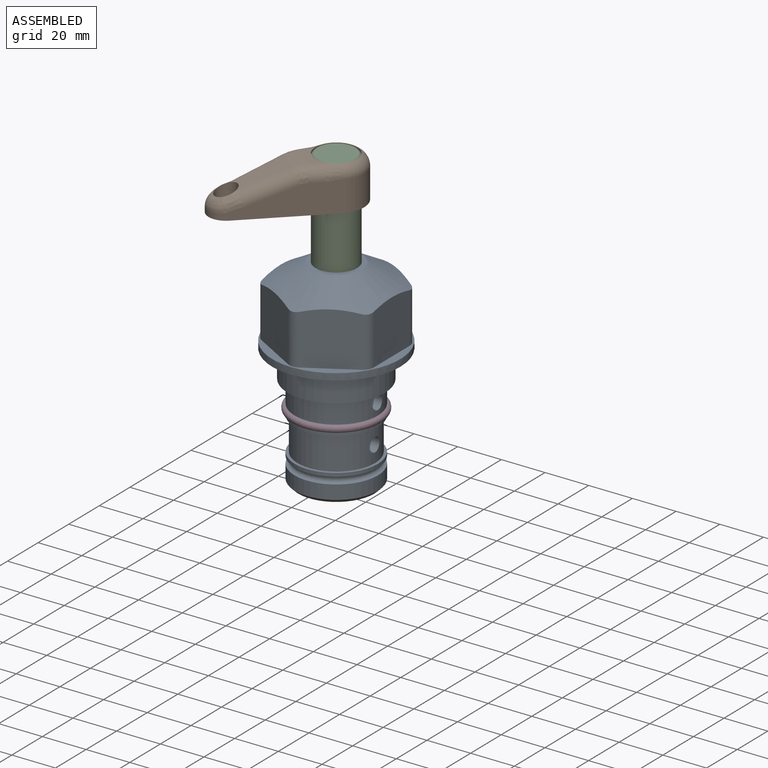
[diagram: assembled view]
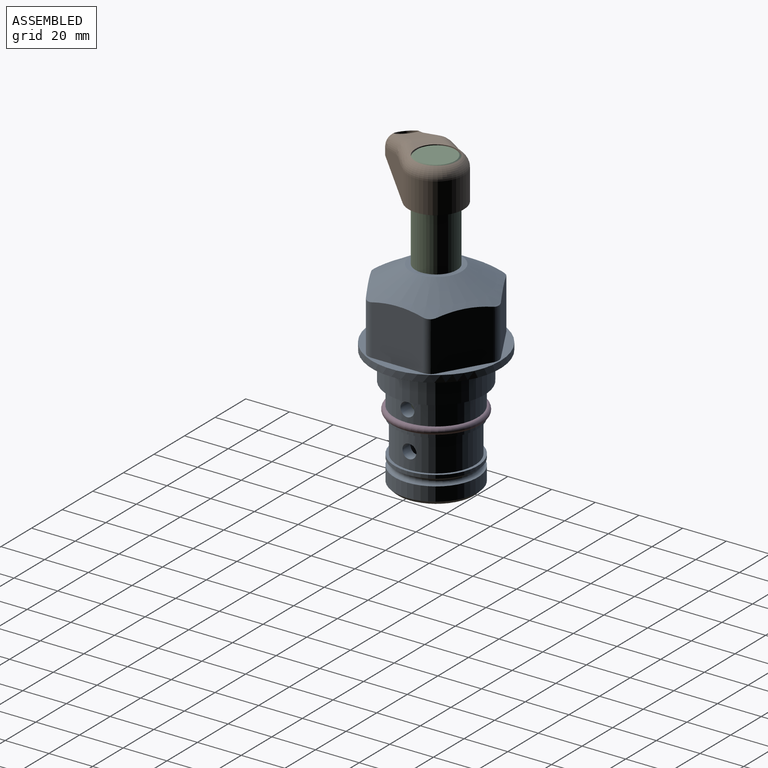
[diagram: assembled view, second angle]
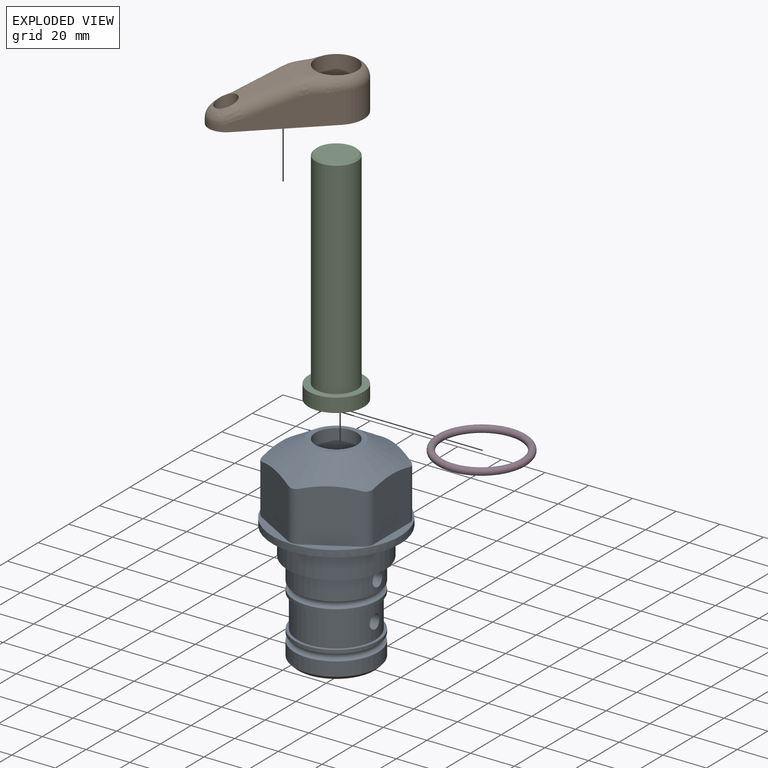
[diagram: exploded view]
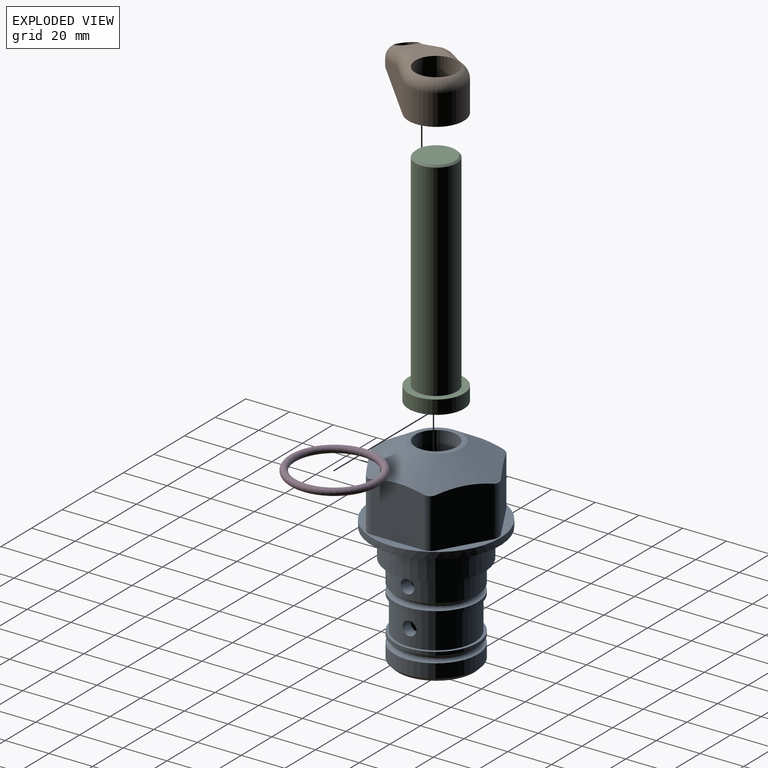
[diagram: exploded view, second angle]
ASSEMBLY  parts=4 mates=2
PART A: 36 faces, bbox 58.7x58.7x91.2 mm
  f0: cylinder r=17.78mm len=35.56mm, axis (0,0,1), area 1670.8mm2, adj f23,f24,f31
  f1: cylinder r=19.05mm len=38.1mm, axis (0,0,1), area 1191.9mm2, adj f26,f27,f30
  f2: plane 58.66x58.66mm, normal (0,0,-1), area 1150.6mm2, adj f3,f28
  f3: cylinder r=29.33mm len=58.66mm, axis (0,0,-1), area 585.1mm2, adj f2,f4
  f4: plane 58.66x58.66mm, normal (0,0,1), area 475.9mm2, adj f3,f5,f6,f7,f8,f9,f10,f11
  f5: plane 24.5x20.32mm, normal (-0.5,0.87,0), area 562.8mm2, adj f4,f15,f16,f17
  f6: plane 24.5x20.32mm, normal (0.5,0.87,0), area 562.8mm2, adj f4,f14,f15,f17
  f7: plane 24.5x23.48mm, normal (1,0,0), area 562.8mm2, adj f4,f13,f14,f17
  f8: plane 24.5x20.32mm, normal (0.5,-0.87,0), area 562.8mm2, adj f4,f12,f13,f17
  f9: plane 24.5x20.32mm, normal (-0.5,-0.87,0), area 562.8mm2, adj f4,f11,f12,f17
  f10: plane 24.5x23.48mm, normal (-1,0,0), area 562.8mm2, adj f4,f11,f16,f17
  f11: cylinder r=5.08mm len=23.01mm, axis (0,0,-1), area 121.2mm2, adj f4,f9,f10,f17
  f12: cylinder r=5.08mm len=23.01mm, axis (0,0,-1), area 121.2mm2, adj f4,f8,f9,f17
  f13: cylinder r=5.08mm len=23.01mm, axis (0,0,-1), area 121.2mm2, adj f4,f7,f8,f17
  f14: cylinder r=5.08mm len=23.01mm, axis (0,0,-1), area 121.2mm2, adj f4,f6,f7,f17
  f15: cylinder r=5.08mm len=23.01mm, axis (0,0,-1), area 121.2mm2, adj f4,f5,f6,f17
  f16: cylinder r=5.08mm len=23.01mm, axis (0,0,-1), area 121.2mm2, adj f4,f5,f10,f17
  f17: cone r=11.73mm half-angle=60deg, axis (0,0,-1), area 2071.8mm2, adj f5,f6,f7,f8,f9,f10,f11,f12
  f18: plane 23.46x23.46mm, normal (0,0,1), area 147.4mm2, adj f17,f35
  f19: plane 34.93x34.93mm, normal (0,0,-1), area 958mm2, adj f29
  f20: cylinder r=19.05mm len=38.1mm, axis (0,0,1), area 760.1mm2, adj f21,f29
  f21: torus R=19.05mm, axis (0,0,1), area 565.3mm2, adj f20,f22
  f22: cylinder r=19.05mm len=38.1mm, axis (0,0,1), area 190mm2, adj f21,f23
  f23: plane 38.1x38.1mm, normal (0,0,1), area 146.9mm2, adj f0,f22
  f24: plane 38.1x38.1mm, normal (0,0,-1), area 146.9mm2, adj f0,f25
  f25: cylinder r=19.05mm len=38.1mm, axis (0,0,1), area 190mm2, adj f24,f26
  f26: torus R=19.05mm, axis (0,0,1), area 565.3mm2, adj f1,f25
  f27: plane 44.45x44.45mm, normal (0,0,-1), area 411.7mm2, adj f1,f28
  f28: cylinder r=22.23mm len=44.45mm, axis (0,0,1), area 1773.5mm2, adj f2,f27
  f29: cone r=19.05mm half-angle=45deg, axis (0,0,1), area 257.5mm2, adj f19,f20
  f30: cylinder r=3.17mm len=6.75mm, axis (-1,0,0), area 128mm2, adj f1,f33
  f31: cylinder r=3.17mm len=6.35mm, axis (-1,0,0), area 102.5mm2, adj f0,f33
  f32: plane 25.4x25.4mm, normal (0,0,1), area 506.7mm2, adj f33
  f33: cylinder r=12.7mm len=66.42mm, axis (0,0,-1), area 5236.2mm2, adj f30,f31,f32,f34
  f34: cone r=9.53mm half-angle=30deg, axis (0,0,-1), area 443.4mm2, adj f33,f35
  f35: cylinder r=9.53mm len=19.05mm, axis (0,0,-1), area 849mm2, adj f18,f34
PART B: 22 faces, bbox 28.3x65.3x20.4 mm
  f0: cylinder r=12.7mm len=25.4mm, axis (0,0,-1), area 598.6mm2, adj f1,f3,f7,f10
  f1: plane 42.34x14.01mm, normal (0.99,0.11,0), area 430.7mm2, adj f0,f2,f7,f11,f13,f15,f17,f19
  f2: cylinder r=7.94mm len=15.78mm, axis (0,0,-1), area 64.7mm2, adj f1,f3,f7,f21
  f3: plane 42.34x14.01mm, normal (-0.99,0.11,0), area 430.7mm2, adj f0,f2,f7,f12,f14,f16,f18,f20
  f4: cylinder r=9.53mm len=19.05mm, axis (0,0,-1), area 1140.1mm2, adj f6,f7,f10,f11,f12
  f5: cylinder r=4.76mm len=10.58mm, axis (0,0,-1), area 274mm2, adj f7,f8,f19,f20,f21
  f6: plane 12.73x5.65mm, normal (0,0,1), area 47.1mm2, adj f4,f9,f13,f14
  f7: plane 63.5x25.4mm, normal (0,0,-1), area 886.1mm2, adj f0,f1,f2,f3,f4,f5
  f8: plane 21.11x11.3mm, normal (0,0.34,0.94), area 174.1mm2, adj f5,f9,f17,f18
  f9: cylinder r=17.78mm len=11.46mm, axis (-1,0,0), area 68.3mm2, adj f6,f8,f15,f16
  f10: torus R=7.11mm, axis (0,0,1), area 245.1mm2, adj f0,f4,f11,f12
  f11: bspline ~8.68x6.87mm, area 45.1mm2, adj f1,f4,f10,f13
  f12: bspline ~8.68x6.87mm, area 45.1mm2, adj f3,f4,f10,f14
  f13: cylinder r=5.59mm len=6.27mm, axis (0.11,-0.99,0), area 49.9mm2, adj f1,f6,f11,f15
  f14: cylinder r=5.59mm len=6.27mm, axis (0.11,0.99,0), area 49.9mm2, adj f3,f6,f12,f16
  f15: bspline ~6.32x6.16mm, area 47.8mm2, adj f1,f9,f13,f17
  f16: bspline ~11.1x6.74mm, area 47.8mm2, adj f3,f9,f14,f18
  f17: cylinder r=5.59mm len=21.7mm, axis (0.1,-0.93,0.34), area 186.4mm2, adj f1,f8,f15,f19
  f18: cylinder r=5.59mm len=21.7mm, axis (0.1,0.93,-0.34), area 186.4mm2, adj f3,f8,f16,f20
  f19: bspline ~8.9x7.42mm, area 45.9mm2, adj f1,f5,f17,f21
  f20: bspline ~8.9x7.42mm, area 45.9mm2, adj f3,f5,f18,f21
  f21: bspline ~15.87x7.94mm, area 108mm2, adj f2,f5,f19,f20
PART C: 6 faces, bbox 25.4x25.4x101.6 mm
  f0: plane 17.46x17.46mm, normal (0,0,1), area 239.5mm2, adj f5
  f1: plane 25.4x25.4mm, normal (0,0,-1), area 506.7mm2, adj f2
  f2: cylinder r=12.7mm len=25.4mm, axis (0,0,1), area 506.7mm2, adj f1,f3
  f3: plane 25.4x25.4mm, normal (0,0,1), area 221.7mm2, adj f2,f4
  f4: cylinder r=9.53mm len=94.46mm, axis (0,0,1), area 5653mm2, adj f3,f5
  f5: cone r=8.73mm half-angle=45deg, axis (0,0,-1), area 64.4mm2, adj f0,f4
PART D: 1 faces, bbox 44.7x44.7x3.2 mm
  f0: torus R=19.05mm, axis (0,0,1), area 1193.9mm2
PLACE A t=(-26.01,-4.97,6.06)mm fixed
PLACE B rot(axis=(0,0,1),140.2deg) t=(-26.01,-4.97,67.54)mm
PLACE C rot(axis=(0,0,1),140.2deg) t=(-26.01,-4.97,12.93)mm
PLACE D t=(-26.01,-4.97,6.06)mm
MATE cylindrical C.f2 <-> A.f0  axis (0,0,1) through (-26.01,-4.97,38.57)mm
MATE fastened B.f0 <-> C.f2  axis (0,0,1) through (-26.01,-4.97,86.59)mm
